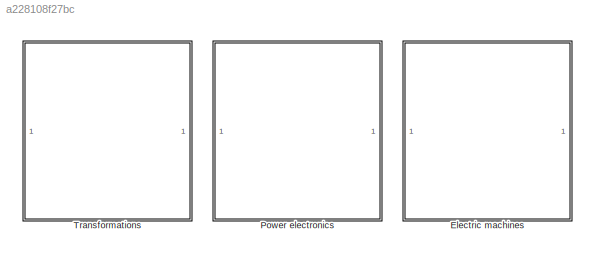
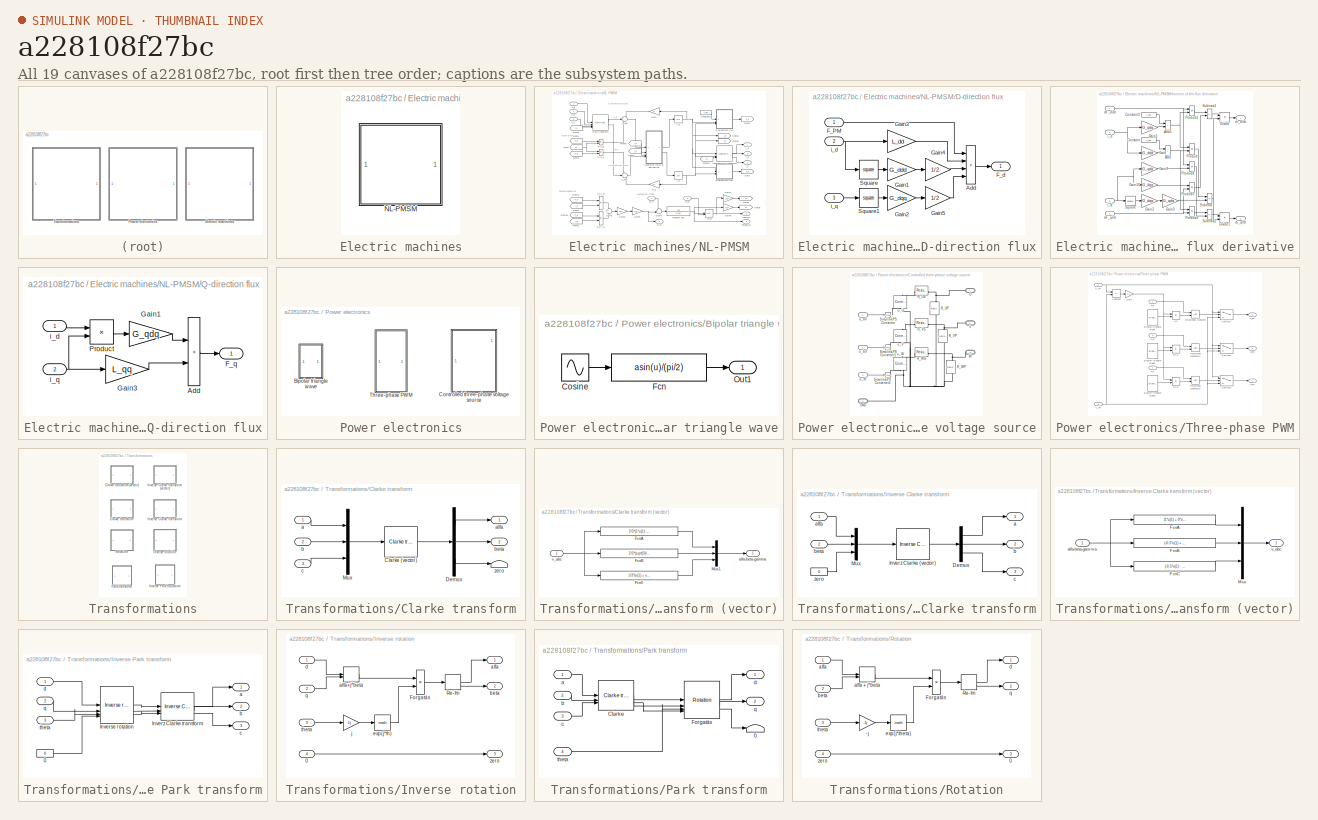
[diagram: thumbnail index - all 19 canvases of the model, root first then tree order]
MODEL slx_a228108f27bc
KIND library
CONFIG AbsTol = auto
CONFIG EnableMultiTasking = off
CONFIG FixedStep = auto
CONFIG MaxStep = auto
CONFIG MinStep = auto
CONFIG RelTol = 1e-3
CONFIG SampleTimeConstraint = Unconstrained
CONFIG SolverName = VariableStepAuto
CONFIG StartTime = 0.0
CONFIG StopTime = 10.0
BLOCK [SubSystem] Electric machines
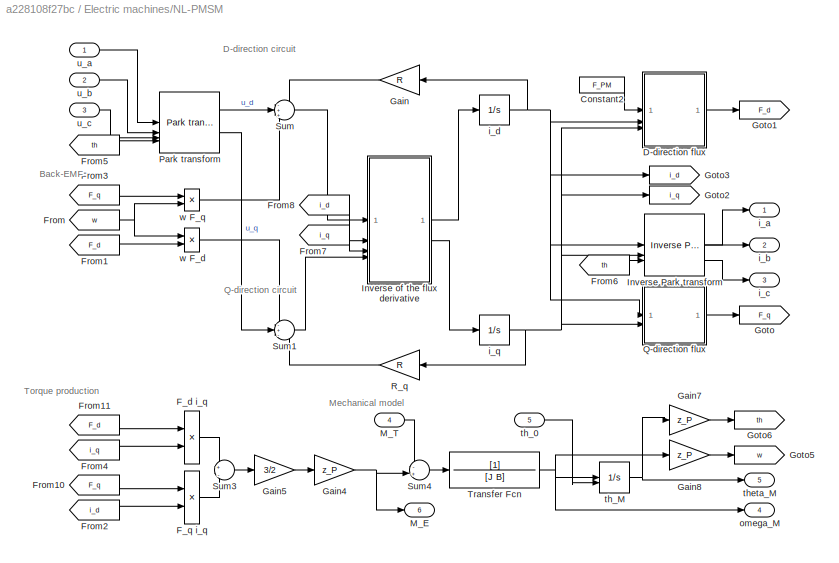
BLOCK [SubSystem] Electric machines/NL-PMSM
BLOCK [Constant] Electric machines/NL-PMSM/Constant2
  Value = F_PM
BLOCK [SubSystem] Electric machines/NL-PMSM/D-direction flux
BLOCK [Sum] Electric machines/NL-PMSM/D-direction flux/Add
  IconShape = rectangular
  Inputs = ++++
BLOCK [Inport] Electric machines/NL-PMSM/D-direction flux/F_PM
BLOCK [Outport] Electric machines/NL-PMSM/D-direction flux/F_d
BLOCK [Gain] Electric machines/NL-PMSM/D-direction flux/Gain1
  Gain = G_ddd
BLOCK [Gain] Electric machines/NL-PMSM/D-direction flux/Gain2
  Gain = G_dqq
BLOCK [Gain] Electric machines/NL-PMSM/D-direction flux/Gain3
  Gain = L_dd
BLOCK [Gain] Electric machines/NL-PMSM/D-direction flux/Gain4
  Gain = 1/2
BLOCK [Gain] Electric machines/NL-PMSM/D-direction flux/Gain5
  Gain = 1/2
BLOCK [Math] Electric machines/NL-PMSM/D-direction flux/Square
  Operator = square
BLOCK [Math] Electric machines/NL-PMSM/D-direction flux/Square1
  Operator = square
BLOCK [Inport] Electric machines/NL-PMSM/D-direction flux/i_d
  Port = 2
BLOCK [Inport] Electric machines/NL-PMSM/D-direction flux/i_q
  Port = 3
BLOCK [Product] Electric machines/NL-PMSM/F_d i_q
BLOCK [Product] Electric machines/NL-PMSM/F_q i_q
BLOCK [From] Electric machines/NL-PMSM/From
  GotoTag = w
BLOCK [From] Electric machines/NL-PMSM/From1
  GotoTag = F_d
BLOCK [From] Electric machines/NL-PMSM/From10
  GotoTag = F_q
BLOCK [From] Electric machines/NL-PMSM/From11
  GotoTag = F_d
BLOCK [From] Electric machines/NL-PMSM/From2
  GotoTag = i_d
BLOCK [From] Electric machines/NL-PMSM/From3
  GotoTag = F_q
BLOCK [From] Electric machines/NL-PMSM/From4
  GotoTag = i_q
BLOCK [From] Electric machines/NL-PMSM/From5
  GotoTag = th
BLOCK [From] Electric machines/NL-PMSM/From6
  GotoTag = th
BLOCK [From] Electric machines/NL-PMSM/From7
  GotoTag = i_q
BLOCK [From] Electric machines/NL-PMSM/From8
  GotoTag = i_d
BLOCK [Gain] Electric machines/NL-PMSM/Gain
  Gain = R
  NameLocation = top
BLOCK [Gain] Electric machines/NL-PMSM/Gain4
  Gain = z_P
BLOCK [Gain] Electric machines/NL-PMSM/Gain5
  Gain = 3/2
BLOCK [Gain] Electric machines/NL-PMSM/Gain7
  Gain = z_P
BLOCK [Gain] Electric machines/NL-PMSM/Gain8
  Gain = z_P
BLOCK [Goto] Electric machines/NL-PMSM/Goto
  GotoTag = F_q
BLOCK [Goto] Electric machines/NL-PMSM/Goto1
  GotoTag = F_d
BLOCK [Goto] Electric machines/NL-PMSM/Goto2
  GotoTag = i_q
BLOCK [Goto] Electric machines/NL-PMSM/Goto3
  GotoTag = i_d
BLOCK [Goto] Electric machines/NL-PMSM/Goto5
  GotoTag = w
BLOCK [Goto] Electric machines/NL-PMSM/Goto6
  GotoTag = th
BLOCK [Reference] Electric machines/NL-PMSM/Inverse Park transform  REF=$bdroot/Transformations/Inverse Park transform
  SourceBlock = $bdroot/Transformations/Inverse Park transform
  SourceType = Inverse Park transform
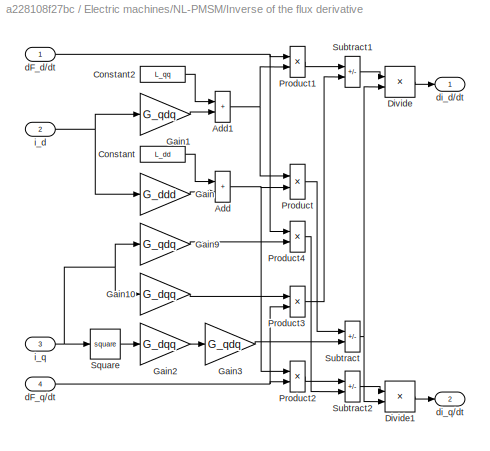
BLOCK [SubSystem] Electric machines/NL-PMSM/Inverse of the flux derivative
  NameLocation = right
BLOCK [Sum] Electric machines/NL-PMSM/Inverse of the flux derivative/Add
  IconShape = rectangular
BLOCK [Sum] Electric machines/NL-PMSM/Inverse of the flux derivative/Add1
  IconShape = rectangular
BLOCK [Constant] Electric machines/NL-PMSM/Inverse of the flux derivative/Constant
  Value = L_dd
BLOCK [Constant] Electric machines/NL-PMSM/Inverse of the flux derivative/Constant2
  Value = L_qq
BLOCK [Product] Electric machines/NL-PMSM/Inverse of the flux derivative/Divide
  Inputs = */
BLOCK [Product] Electric machines/NL-PMSM/Inverse of the flux derivative/Divide1
  Inputs = */
BLOCK [Gain] Electric machines/NL-PMSM/Inverse of the flux derivative/Gain
  Gain = G_ddd
BLOCK [Gain] Electric machines/NL-PMSM/Inverse of the flux derivative/Gain1
  Gain = G_qdq
BLOCK [Gain] Electric machines/NL-PMSM/Inverse of the flux derivative/Gain10
  Gain = G_dqq
BLOCK [Gain] Electric machines/NL-PMSM/Inverse of the flux derivative/Gain2
  Gain = G_dqq
BLOCK [Gain] Electric machines/NL-PMSM/Inverse of the flux derivative/Gain3
  Gain = G_qdq
BLOCK [Gain] Electric machines/NL-PMSM/Inverse of the flux derivative/Gain9
  Gain = G_qdq
BLOCK [Product] Electric machines/NL-PMSM/Inverse of the flux derivative/Product
BLOCK [Product] Electric machines/NL-PMSM/Inverse of the flux derivative/Product1
BLOCK [Product] Electric machines/NL-PMSM/Inverse of the flux derivative/Product2
BLOCK [Product] Electric machines/NL-PMSM/Inverse of the flux derivative/Product3
BLOCK [Product] Electric machines/NL-PMSM/Inverse of the flux derivative/Product4
BLOCK [Math] Electric machines/NL-PMSM/Inverse of the flux derivative/Square
  Operator = square
BLOCK [Sum] Electric machines/NL-PMSM/Inverse of the flux derivative/Subtract
  IconShape = rectangular
  Inputs = +-
BLOCK [Sum] Electric machines/NL-PMSM/Inverse of the flux derivative/Subtract1
  IconShape = rectangular
  Inputs = +-
BLOCK [Sum] Electric machines/NL-PMSM/Inverse of the flux derivative/Subtract2
  IconShape = rectangular
  Inputs = +-
BLOCK [Inport] Electric machines/NL-PMSM/Inverse of the flux derivative/dF_d//dt
BLOCK [Inport] Electric machines/NL-PMSM/Inverse of the flux derivative/dF_q//dt
  Port = 4
BLOCK [Outport] Electric machines/NL-PMSM/Inverse of the flux derivative/di_d//dt
BLOCK [Outport] Electric machines/NL-PMSM/Inverse of the flux derivative/di_q//dt
  Port = 2
BLOCK [Inport] Electric machines/NL-PMSM/Inverse of the flux derivative/i_d
  Port = 2
BLOCK [Inport] Electric machines/NL-PMSM/Inverse of the flux derivative/i_q
  Port = 3
BLOCK [Outport] Electric machines/NL-PMSM/M_E
  Port = 6
BLOCK [Inport] Electric machines/NL-PMSM/M_T
  Port = 4
BLOCK [Reference] Electric machines/NL-PMSM/Park transform  REF=$bdroot/Transformations/Park transform
  SourceBlock = $bdroot/Transformations/Park transform
  SourceType = Park transform
BLOCK [SubSystem] Electric machines/NL-PMSM/Q-direction flux
BLOCK [Sum] Electric machines/NL-PMSM/Q-direction flux/Add
  IconShape = rectangular
BLOCK [Outport] Electric machines/NL-PMSM/Q-direction flux/F_q
BLOCK [Gain] Electric machines/NL-PMSM/Q-direction flux/Gain1
  Gain = G_qdq
BLOCK [Gain] Electric machines/NL-PMSM/Q-direction flux/Gain3
  Gain = L_qq
BLOCK [Product] Electric machines/NL-PMSM/Q-direction flux/Product
BLOCK [Inport] Electric machines/NL-PMSM/Q-direction flux/i_d
BLOCK [Inport] Electric machines/NL-PMSM/Q-direction flux/i_q
  Port = 2
BLOCK [Gain] Electric machines/NL-PMSM/R_q
  Gain = R
BLOCK [Sum] Electric machines/NL-PMSM/Sum
  Inputs = -++
BLOCK [Sum] Electric machines/NL-PMSM/Sum1
  Inputs = -+-
BLOCK [Sum] Electric machines/NL-PMSM/Sum3
  Inputs = +|-
BLOCK [Sum] Electric machines/NL-PMSM/Sum4
  Inputs = -+|
BLOCK [TransferFcn] Electric machines/NL-PMSM/Transfer Fcn
  Denominator = [J B]
BLOCK [Outport] Electric machines/NL-PMSM/i_a
  VectorParamsAs1DForOutWhenUnconnected = off
BLOCK [Outport] Electric machines/NL-PMSM/i_b
  Port = 2
  VectorParamsAs1DForOutWhenUnconnected = off
BLOCK [Outport] Electric machines/NL-PMSM/i_c
  Port = 3
  VectorParamsAs1DForOutWhenUnconnected = off
BLOCK [Integrator] Electric machines/NL-PMSM/i_d
  InitialCondition = i_d0
BLOCK [Integrator] Electric machines/NL-PMSM/i_q
  InitialCondition = i_q0
BLOCK [Outport] Electric machines/NL-PMSM/omega_M
  Port = 4
  VectorParamsAs1DForOutWhenUnconnected = off
BLOCK [Inport] Electric machines/NL-PMSM/th_0
  Port = 5
BLOCK [Integrator] Electric machines/NL-PMSM/th_M
  InitialConditionSource = external
BLOCK [Outport] Electric machines/NL-PMSM/theta_M
  Port = 5
  VectorParamsAs1DForOutWhenUnconnected = off
BLOCK [Inport] Electric machines/NL-PMSM/u_a
BLOCK [Inport] Electric machines/NL-PMSM/u_b
  Port = 2
BLOCK [Inport] Electric machines/NL-PMSM/u_c
  Port = 3
BLOCK [Product] Electric machines/NL-PMSM/w F_d
BLOCK [Product] Electric machines/NL-PMSM/w F_q
BLOCK [SubSystem] Power electronics
BLOCK [SubSystem] Power electronics/Bipolar triangle wave
BLOCK [Sin] Power electronics/Bipolar triangle wave/Cosine
  Frequency = 2*pi*f
  Phase = q+pi/2
  SampleTime = 0
BLOCK [Fcn] Power electronics/Bipolar triangle wave/Fcn
  Expr = asin(u)/(pi/2)
BLOCK [Outport] Power electronics/Bipolar triangle wave/Out1
  VectorParamsAs1DForOutWhenUnconnected = off
BLOCK [SubSystem] Power electronics/Controlled three-phase voltage source
  NameLocation = top
  PortSchema = {"entries":[{"content":{"sides":[{"content":{"connectorIds":["In1","In2","In3"]},"type":"ConnectorPlacement.EquallySpacedRectSide","uuid":"86f4b7c9-b4c1-4fa9-92c9-df14c018ab5a"},{"content":{"connectorIds":["RConn1","RConn2","RConn3"],"side":"RIGHT"},"type":"ConnectorPlacement.EquallySpacedRectSide","uuid":"262f16fa-1458-4a6c-a6cd-e957fd1dcf99"},{"content":{"side":"TOP"},"type":"ConnectorPlacement....<+406ch>
BLOCK [PMIOPort] Power electronics/Controlled three-phase voltage source/GND
  Port = 4
  Side = Right
BLOCK [Reference] Power electronics/Controlled three-phase voltage source/R_UP  REF=fl_lib/Electrical/Electrical Elements/Resistor
  AttributesFormatString = %<R> %<R_unit>
  NameLocation = right
  SourceBlock = fl_lib/Electrical/Electrical Elements/Resistor
  SourceType = Resistor
BLOCK [Reference] Power electronics/Controlled three-phase voltage source/R_US  REF=fl_lib/Electrical/Electrical Elements/Resistor
  AttributesFormatString = %<R> %<R_unit>
  SourceBlock = fl_lib/Electrical/Electrical Elements/Resistor
  SourceType = Resistor
BLOCK [Reference] Power electronics/Controlled three-phase voltage source/R_VP  REF=fl_lib/Electrical/Electrical Elements/Resistor
  AttributesFormatString = %<R> %<R_unit>
  NameLocation = right
  SourceBlock = fl_lib/Electrical/Electrical Elements/Resistor
  SourceType = Resistor
BLOCK [Reference] Power electronics/Controlled three-phase voltage source/R_VS  REF=fl_lib/Electrical/Electrical Elements/Resistor
  AttributesFormatString = %<R> %<R_unit>
  SourceBlock = fl_lib/Electrical/Electrical Elements/Resistor
  SourceType = Resistor
BLOCK [Reference] Power electronics/Controlled three-phase voltage source/R_WP  REF=fl_lib/Electrical/Electrical Elements/Resistor
  AttributesFormatString = %<R> %<R_unit>
  NameLocation = right
  SourceBlock = fl_lib/Electrical/Electrical Elements/Resistor
  SourceType = Resistor
BLOCK [Reference] Power electronics/Controlled three-phase voltage source/R_WS  REF=fl_lib/Electrical/Electrical Elements/Resistor
  AttributesFormatString = %<R> %<R_unit>
  SourceBlock = fl_lib/Electrical/Electrical Elements/Resistor
  SourceType = Resistor
BLOCK [Reference] Power electronics/Controlled three-phase voltage source/Simulink-PS Converter  REF=nesl_utility/Simulink-PS
Converter
  SourceBlock = nesl_utility/Simulink-PS\nConverter
  SourceType = Simulink-PS\nConverter
BLOCK [Reference] Power electronics/Controlled three-phase voltage source/Simulink-PS Converter1  REF=nesl_utility/Simulink-PS
Converter
  SourceBlock = nesl_utility/Simulink-PS\nConverter
  SourceType = Simulink-PS\nConverter
BLOCK [Reference] Power electronics/Controlled three-phase voltage source/Simulink-PS Converter2  REF=nesl_utility/Simulink-PS
Converter
  SourceBlock = nesl_utility/Simulink-PS\nConverter
  SourceType = Simulink-PS\nConverter
BLOCK [PMIOPort] Power electronics/Controlled three-phase voltage source/U
  Side = Right
BLOCK [PMIOPort] Power electronics/Controlled three-phase voltage source/V
  Port = 2
  Side = Right
BLOCK [PMIOPort] Power electronics/Controlled three-phase voltage source/W
  Port = 3
  Side = Right
BLOCK [Reference] Power electronics/Controlled three-phase voltage source/u_U  REF=fl_lib/Electrical/Electrical Sources/Controlled Voltage
Source
  NameLocation = left
  SourceBlock = fl_lib/Electrical/Electrical Sources/Controlled Voltage\nSource
  SourceType = Controlled Voltage\nSource
BLOCK [Reference] Power electronics/Controlled three-phase voltage source/u_V  REF=fl_lib/Electrical/Electrical Sources/Controlled Voltage
Source
  NameLocation = left
  SourceBlock = fl_lib/Electrical/Electrical Sources/Controlled Voltage\nSource
  SourceType = Controlled Voltage\nSource
BLOCK [Reference] Power electronics/Controlled three-phase voltage source/u_W  REF=fl_lib/Electrical/Electrical Sources/Controlled Voltage
Source
  NameLocation = left
  SourceBlock = fl_lib/Electrical/Electrical Sources/Controlled Voltage\nSource
  SourceType = Controlled Voltage\nSource
BLOCK [Inport] Power electronics/Controlled three-phase voltage source/u_a0
BLOCK [Inport] Power electronics/Controlled three-phase voltage source/u_b0
  Port = 2
BLOCK [Inport] Power electronics/Controlled three-phase voltage source/u_c0
  Port = 3
BLOCK [SubSystem] Power electronics/Three-phase PWM
BLOCK [Reference] Power electronics/Three-phase PWM/Bipolar triangle wave  REF=$bdroot/Power electronics/Bipolar
triangle wave
  SourceBlock = $bdroot/Power electronics/Bipolar\ntriangle wave
  SourceType = Bipolar triangle wave
BLOCK [Reference] Power electronics/Three-phase PWM/Bipolar triangle wave1  REF=$bdroot/Power electronics/Bipolar
triangle wave
  SourceBlock = $bdroot/Power electronics/Bipolar\ntriangle wave
  SourceType = Bipolar triangle wave
BLOCK [Reference] Power electronics/Three-phase PWM/Bipolar triangle wave2  REF=$bdroot/Power electronics/Bipolar
triangle wave
  SourceBlock = $bdroot/Power electronics/Bipolar\ntriangle wave
  SourceType = Bipolar triangle wave
BLOCK [Gain] Power electronics/Three-phase PWM/Gain
  Gain = 1/2
BLOCK [RelationalOperator] Power electronics/Three-phase PWM/Relational Operator
  InputSameDT = off
  OutDataTypeStr = boolean
BLOCK [RelationalOperator] Power electronics/Three-phase PWM/Relational Operator1
  InputSameDT = off
  OutDataTypeStr = boolean
BLOCK [RelationalOperator] Power electronics/Three-phase PWM/Relational Operator2
  InputSameDT = off
  OutDataTypeStr = boolean
BLOCK [Sum] Power electronics/Three-phase PWM/Subtract
  IconShape = rectangular
  Inputs = +-
BLOCK [Switch] Power electronics/Three-phase PWM/Switch
  Criteria = u2 ~= 0
  InputSameDT = off
  SaturateOnIntegerOverflow = off
BLOCK [Switch] Power electronics/Three-phase PWM/Switch1
  Criteria = u2 ~= 0
  InputSameDT = off
  SaturateOnIntegerOverflow = off
BLOCK [Switch] Power electronics/Three-phase PWM/Switch2
  Criteria = u2 ~= 0
  InputSameDT = off
  SaturateOnIntegerOverflow = off
BLOCK [Inport] Power electronics/Three-phase PWM/U_TN
  Port = 5
BLOCK [Inport] Power electronics/Three-phase PWM/U_TP
BLOCK [Product] Power electronics/Three-phase PWM/c(t)
  RndMeth = Zero
BLOCK [Product] Power electronics/Three-phase PWM/c(t)1
  RndMeth = Zero
BLOCK [Product] Power electronics/Three-phase PWM/c(t)2
  RndMeth = Zero
BLOCK [Inport] Power electronics/Three-phase PWM/u_a
  Port = 2
BLOCK [Outport] Power electronics/Three-phase PWM/u_a0
  VectorParamsAs1DForOutWhenUnconnected = off
BLOCK [Inport] Power electronics/Three-phase PWM/u_b
  Port = 3
BLOCK [Outport] Power electronics/Three-phase PWM/u_b0
  Port = 2
  VectorParamsAs1DForOutWhenUnconnected = off
BLOCK [Inport] Power electronics/Three-phase PWM/u_c
  Port = 4
BLOCK [Outport] Power electronics/Three-phase PWM/u_c0
  Port = 3
  VectorParamsAs1DForOutWhenUnconnected = off
BLOCK [SubSystem] Transformations
BLOCK [SubSystem] Transformations/Clarke transform
BLOCK [SubSystem] Transformations/Clarke transform (vector)
BLOCK [Fcn] Transformations/Clarke transform (vector)/Fcn0
  Expr = 1/3*(u(1) + u(2) + u(3))
BLOCK [Fcn] Transformations/Clarke transform (vector)/FcnA
  Expr = 2/3*(1*u(1) - 0.5*u(2) - 0.5*u(3))
BLOCK [Fcn] Transformations/Clarke transform (vector)/FcnB
  Expr = 2/3*(sqrt(3)/2*u(2) - sqrt(3)/2*u(3))
BLOCK [Mux] Transformations/Clarke transform (vector)/Mux1
  DisplayOption = bar
  Inputs = 3
BLOCK [Outport] Transformations/Clarke transform (vector)/alfa-beta-gamma
  VectorParamsAs1DForOutWhenUnconnected = off
BLOCK [Inport] Transformations/Clarke transform (vector)/v_abc
BLOCK [Reference] Transformations/Clarke transform/Clarke (vector)  REF=$bdroot/Transformations/Clarke transform (vector)
  SourceBlock = $bdroot/Transformations/Clarke transform (vector)
  SourceType = Clarke-átalakítás
BLOCK [Demux] Transformations/Clarke transform/Demux
  Outputs = 3
BLOCK [Mux] Transformations/Clarke transform/Mux
  DisplayOption = bar
  Inputs = 3
BLOCK [Inport] Transformations/Clarke transform/a
BLOCK [Outport] Transformations/Clarke transform/alfa
  VectorParamsAs1DForOutWhenUnconnected = off
BLOCK [Inport] Transformations/Clarke transform/b
  Port = 2
BLOCK [Outport] Transformations/Clarke transform/beta
  Port = 2
BLOCK [Inport] Transformations/Clarke transform/c
  Port = 3
BLOCK [Terminator] Transformations/Clarke transform/zero
BLOCK [SubSystem] Transformations/Inverse Clarke transform
BLOCK [SubSystem] Transformations/Inverse Clarke transform (vector)
BLOCK [Fcn] Transformations/Inverse Clarke transform (vector)/FcnA
  Expr = (1*u(1) + 0*u(2) + 1*u(3))
BLOCK [Fcn] Transformations/Inverse Clarke transform (vector)/FcnB
  Expr = (-0.5*u(1) + sqrt(3)/2*u(2) + 1*u(3))
BLOCK [Fcn] Transformations/Inverse Clarke transform (vector)/FcnC
  Expr = (-0.5*u(1) - sqrt(3)/2*u(2) + 1*u(3))
BLOCK [Mux] Transformations/Inverse Clarke transform (vector)/Mux
  DisplayOption = bar
  Inputs = 3
BLOCK [Inport] Transformations/Inverse Clarke transform (vector)/alfa-beta-gamma
BLOCK [Outport] Transformations/Inverse Clarke transform (vector)/v_abc
  VectorParamsAs1DForOutWhenUnconnected = off
BLOCK [Demux] Transformations/Inverse Clarke transform/Demux
  Outputs = 3
BLOCK [Reference] Transformations/Inverse Clarke transform/Inverz Clarke (vector)  REF=$bdroot/Transformations/Inverse Clarke transform (vector)
  SourceBlock = $bdroot/Transformations/Inverse Clarke transform (vector)
  SourceType = Clarke-átalakítás
BLOCK [Mux] Transformations/Inverse Clarke transform/Mux
  DisplayOption = bar
  Inputs = 3
BLOCK [Outport] Transformations/Inverse Clarke transform/a
  VectorParamsAs1DForOutWhenUnconnected = off
BLOCK [Inport] Transformations/Inverse Clarke transform/alfa
BLOCK [Outport] Transformations/Inverse Clarke transform/b
  Port = 2
  VectorParamsAs1DForOutWhenUnconnected = off
BLOCK [Inport] Transformations/Inverse Clarke transform/beta
  Port = 2
BLOCK [Outport] Transformations/Inverse Clarke transform/c
  Port = 3
  VectorParamsAs1DForOutWhenUnconnected = off
BLOCK [Constant] Transformations/Inverse Clarke transform/zero
  Value = 0
BLOCK [SubSystem] Transformations/Inverse Park transform
BLOCK [Constant] Transformations/Inverse Park transform/0
  Value = 0
BLOCK [Reference] Transformations/Inverse Park transform/Inverse rotation  REF=$bdroot/Transformations/Inverse rotation
  SourceBlock = $bdroot/Transformations/Inverse rotation
BLOCK [Reference] Transformations/Inverse Park transform/Inverz Clarke transform  REF=$bdroot/Transformations/Inverse Clarke transform
  SourceBlock = $bdroot/Transformations/Inverse Clarke transform
  SourceType = Inverz Clarke-átalakítás
BLOCK [Outport] Transformations/Inverse Park transform/a
  VectorParamsAs1DForOutWhenUnconnected = off
BLOCK [Outport] Transformations/Inverse Park transform/b
  Port = 2
  VectorParamsAs1DForOutWhenUnconnected = off
BLOCK [Outport] Transformations/Inverse Park transform/c
  Port = 3
  VectorParamsAs1DForOutWhenUnconnected = off
BLOCK [Inport] Transformations/Inverse Park transform/d
BLOCK [Inport] Transformations/Inverse Park transform/q
  Port = 2
BLOCK [Inport] Transformations/Inverse Park transform/theta
  Port = 3
BLOCK [SubSystem] Transformations/Inverse rotation
BLOCK [Inport] Transformations/Inverse rotation/0
  Port = 4
BLOCK [Product] Transformations/Inverse rotation/Forgatás
  RndMeth = Zero
BLOCK [ComplexToRealImag] Transformations/Inverse rotation/Re-Im
BLOCK [Outport] Transformations/Inverse rotation/alfa
  VectorParamsAs1DForOutWhenUnconnected = off
BLOCK [RealImagToComplex] Transformations/Inverse rotation/alfa+j*beta
BLOCK [Outport] Transformations/Inverse rotation/beta
  Port = 2
  VectorParamsAs1DForOutWhenUnconnected = off
BLOCK [Inport] Transformations/Inverse rotation/d
BLOCK [Math] Transformations/Inverse rotation/exp(j*th)
  SignedPower = on
BLOCK [Gain] Transformations/Inverse rotation/j
  Gain = 1j
BLOCK [Inport] Transformations/Inverse rotation/q
  Port = 2
BLOCK [Inport] Transformations/Inverse rotation/theta
  Port = 3
BLOCK [Outport] Transformations/Inverse rotation/zero
  Port = 3
  VectorParamsAs1DForOutWhenUnconnected = off
BLOCK [SubSystem] Transformations/Park transform
BLOCK [Terminator] Transformations/Park transform/0
BLOCK [Reference] Transformations/Park transform/Clarke  REF=$bdroot/Transformations/Clarke transform
  SourceBlock = $bdroot/Transformations/Clarke transform
  SourceType = Clarke-átalakítás
BLOCK [Reference] Transformations/Park transform/Forgatás  REF=$bdroot/Transformations/Rotation
  SourceBlock = $bdroot/Transformations/Rotation
BLOCK [Inport] Transformations/Park transform/a
BLOCK [Inport] Transformations/Park transform/b
  Port = 2
BLOCK [Inport] Transformations/Park transform/c
  Port = 3
BLOCK [Outport] Transformations/Park transform/d
  VectorParamsAs1DForOutWhenUnconnected = off
BLOCK [Outport] Transformations/Park transform/q
  Port = 2
  VectorParamsAs1DForOutWhenUnconnected = off
BLOCK [Inport] Transformations/Park transform/theta
  Port = 4
BLOCK [SubSystem] Transformations/Rotation
BLOCK [Gain] Transformations/Rotation/-j
  Gain = -1j
BLOCK [Outport] Transformations/Rotation/0
  Port = 3
BLOCK [Product] Transformations/Rotation/Forgatás
  RndMeth = Zero
BLOCK [ComplexToRealImag] Transformations/Rotation/Re-Im
BLOCK [Inport] Transformations/Rotation/alfa
BLOCK [RealImagToComplex] Transformations/Rotation/alfa + j*beta
BLOCK [Inport] Transformations/Rotation/beta
  Port = 2
BLOCK [Outport] Transformations/Rotation/d
  VectorParamsAs1DForOutWhenUnconnected = off
BLOCK [Math] Transformations/Rotation/exp(j*theta)
  SignedPower = on
BLOCK [Outport] Transformations/Rotation/q
  Port = 2
  VectorParamsAs1DForOutWhenUnconnected = off
BLOCK [Inport] Transformations/Rotation/theta
  Port = 3
BLOCK [Inport] Transformations/Rotation/zero
  Port = 4
ANNOTATION Electric machines/NL-PMSM: Back-EMF
ANNOTATION Electric machines/NL-PMSM: D-direction circuit
ANNOTATION Electric machines/NL-PMSM: Mechanical model
ANNOTATION Electric machines/NL-PMSM: Q-direction circuit
ANNOTATION Electric machines/NL-PMSM: Torque production
LINE Power electronics/Bipolar triangle wave/Cosine:1 -> Power electronics/Bipolar triangle wave/Fcn:1
LINE Power electronics/Bipolar triangle wave/Fcn:1 -> Power electronics/Bipolar triangle wave/Out1:1
LINE Power electronics/Controlled three-phase voltage source/u_a0:1 -> Power electronics/Controlled three-phase voltage source/Simulink-PS Converter:1
LINE Power electronics/Controlled three-phase voltage source/u_b0:1 -> Power electronics/Controlled three-phase voltage source/Simulink-PS Converter1:1
LINE Power electronics/Controlled three-phase voltage source/u_c0:1 -> Power electronics/Controlled three-phase voltage source/Simulink-PS Converter2:1
LINE Power electronics/Three-phase PWM/Bipolar triangle wave1:1 -> Power electronics/Three-phase PWM/c(t)1:2
LINE Power electronics/Three-phase PWM/Bipolar triangle wave2:1 -> Power electronics/Three-phase PWM/c(t)2:2
LINE Power electronics/Three-phase PWM/Bipolar triangle wave:1 -> Power electronics/Three-phase PWM/c(t):2
NET Power electronics/Three-phase PWM/Gain:1 -> Power electronics/Three-phase PWM/c(t)1:1, Power electronics/Three-phase PWM/c(t)2:1, Power electronics/Three-phase PWM/c(t):1
LINE Power electronics/Three-phase PWM/Relational Operator1:1 -> Power electronics/Three-phase PWM/Switch1:2
LINE Power electronics/Three-phase PWM/Relational Operator2:1 -> Power electronics/Three-phase PWM/Switch2:2
LINE Power electronics/Three-phase PWM/Relational Operator:1 -> Power electronics/Three-phase PWM/Switch:2
LINE Power electronics/Three-phase PWM/Subtract:1 -> Power electronics/Three-phase PWM/Gain:1
LINE Power electronics/Three-phase PWM/Switch1:1 -> Power electronics/Three-phase PWM/u_b0:1
LINE Power electronics/Three-phase PWM/Switch2:1 -> Power electronics/Three-phase PWM/u_c0:1
LINE Power electronics/Three-phase PWM/Switch:1 -> Power electronics/Three-phase PWM/u_a0:1
NET Power electronics/Three-phase PWM/U_TN:1 -> Power electronics/Three-phase PWM/Subtract:2, Power electronics/Three-phase PWM/Switch1:3, Power electronics/Three-phase PWM/Switch2:3, Power electronics/Three-phase PWM/Switch:3
NET Power electronics/Three-phase PWM/U_TP:1 -> Power electronics/Three-phase PWM/Subtract:1, Power electronics/Three-phase PWM/Switch1:1, Power electronics/Three-phase PWM/Switch2:1, Power electronics/Three-phase PWM/Switch:1
LINE Power electronics/Three-phase PWM/c(t)1:1 -> Power electronics/Three-phase PWM/Relational Operator1:2
LINE Power electronics/Three-phase PWM/c(t)2:1 -> Power electronics/Three-phase PWM/Relational Operator2:2
LINE Power electronics/Three-phase PWM/c(t):1 -> Power electronics/Three-phase PWM/Relational Operator:2
LINE Power electronics/Three-phase PWM/u_a:1 -> Power electronics/Three-phase PWM/Relational Operator:1
LINE Power electronics/Three-phase PWM/u_b:1 -> Power electronics/Three-phase PWM/Relational Operator1:1
LINE Power electronics/Three-phase PWM/u_c:1 -> Power electronics/Three-phase PWM/Relational Operator2:1
PNET net1: Power electronics/Controlled three-phase voltage source/GND:RConn1 -- Power electronics/Controlled three-phase voltage source/R_UP:RConn1 -- Power electronics/Controlled three-phase voltage source/R_VP:RConn1 -- Power electronics/Controlled three-phase voltage source/R_WP:RConn1 -- Power electronics/Controlled three-phase voltage source/u_U:RConn2 -- Power electronics/Controlled three-phase voltage source/u_V:RConn2 -- Power electronics/Controlled three-phase voltage source/u_W:RConn2
PNET net2: Power electronics/Controlled three-phase voltage source/R_UP:LConn1 -- Power electronics/Controlled three-phase voltage source/R_US:RConn1 -- Power electronics/Controlled three-phase voltage source/U:RConn1
PLINE Power electronics/Controlled three-phase voltage source/R_US:LConn1 -- Power electronics/Controlled three-phase voltage source/u_U:LConn1
PNET net3: Power electronics/Controlled three-phase voltage source/R_VP:LConn1 -- Power electronics/Controlled three-phase voltage source/R_VS:RConn1 -- Power electronics/Controlled three-phase voltage source/V:RConn1
PLINE Power electronics/Controlled three-phase voltage source/R_VS:LConn1 -- Power electronics/Controlled three-phase voltage source/u_V:LConn1
PNET net4: Power electronics/Controlled three-phase voltage source/R_WP:LConn1 -- Power electronics/Controlled three-phase voltage source/R_WS:RConn1 -- Power electronics/Controlled three-phase voltage source/W:RConn1
PLINE Power electronics/Controlled three-phase voltage source/R_WS:LConn1 -- Power electronics/Controlled three-phase voltage source/u_W:LConn1
PLINE Power electronics/Controlled three-phase voltage source/Simulink-PS Converter1:RConn1 -- Power electronics/Controlled three-phase voltage source/u_V:RConn1
PLINE Power electronics/Controlled three-phase voltage source/Simulink-PS Converter2:RConn1 -- Power electronics/Controlled three-phase voltage source/u_W:RConn1
PLINE Power electronics/Controlled three-phase voltage source/Simulink-PS Converter:RConn1 -- Power electronics/Controlled three-phase voltage source/u_U:RConn1
note: NET lines group one-source signal fan-out (src -> all destinations, sorted); 1:1 wires keep LINE; PNET lines group multi-terminal physical nets as a canonical sorted terminal list (undirected conserving connections); 2-terminal nets keep the pairwise PLINE form
